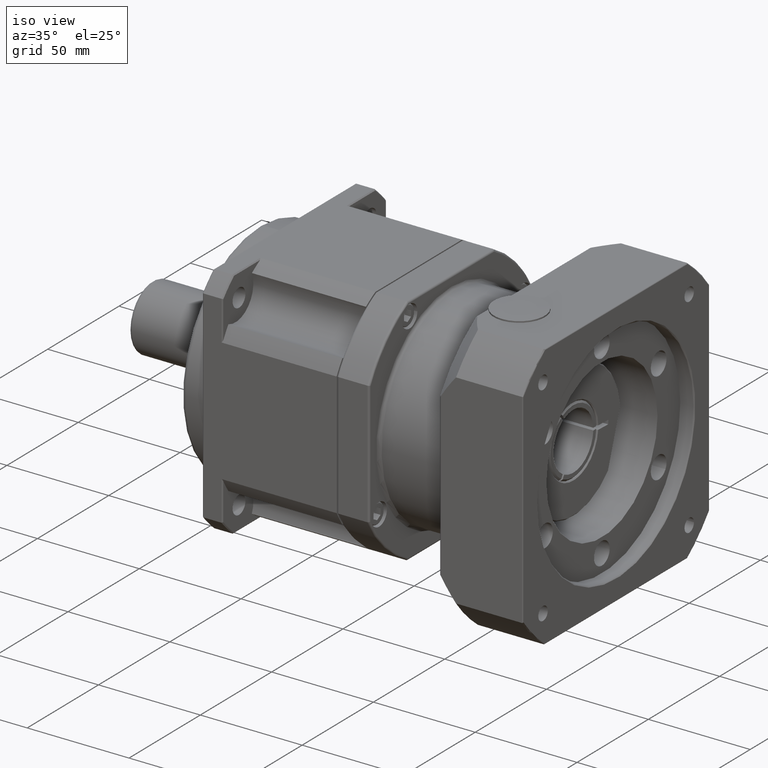
[diagram: clean part render]
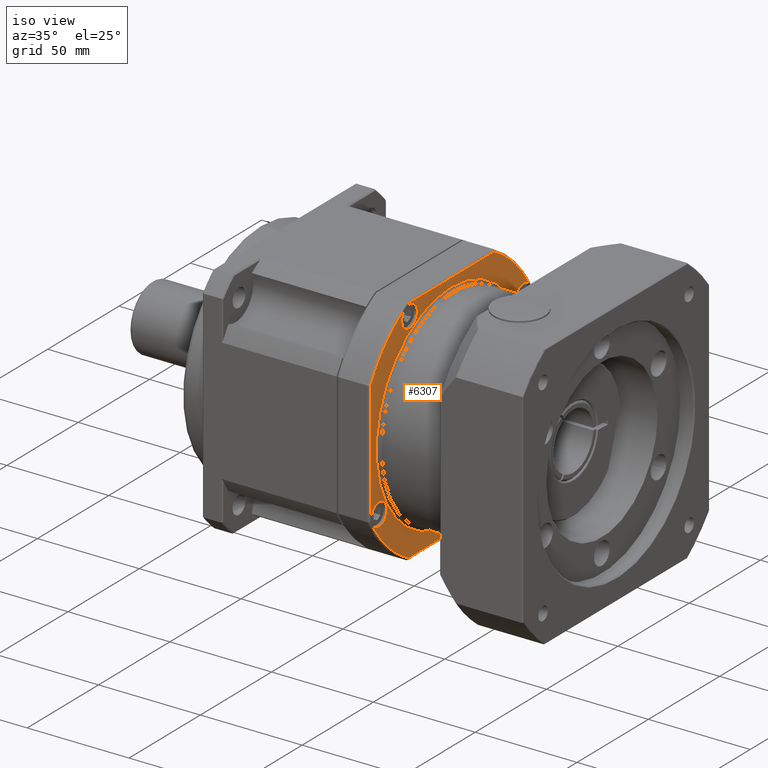
[diagram: same view with one face highlighted and labeled with its STEP entity id]
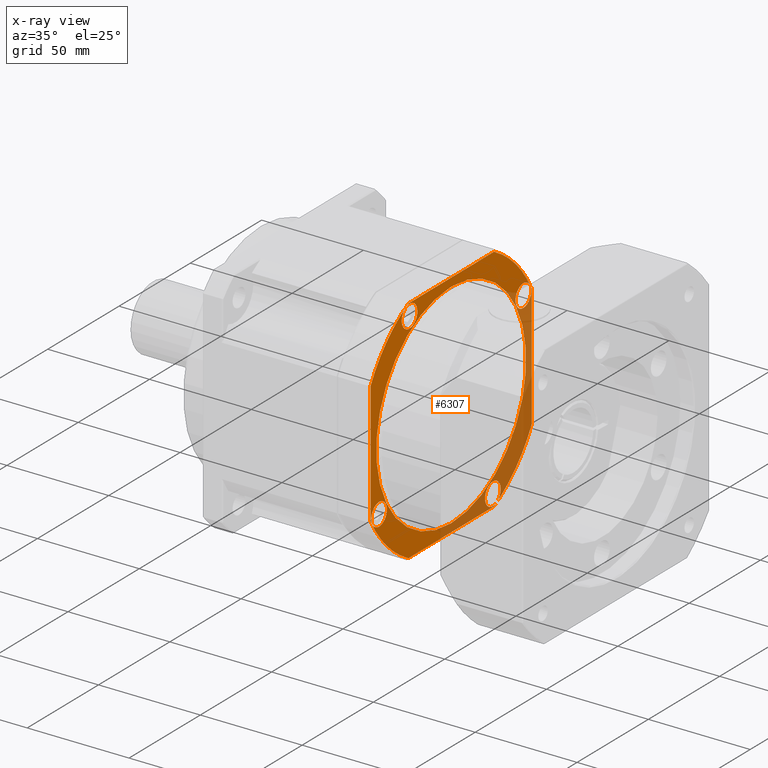
[diagram: x-ray of the same camera — body ghosted, the highlighted face saturated]
A machine part, iso view. The second image highlights one B-rep face of the part: STEP entity #6307.
The next image is the same camera in x-ray: the body ghosted, the highlighted face saturated — about 33% of this face is hidden behind the body in this view.
In plain terms, the highlighted planar face has unit normal (1, 0, 0).
Its self-contained STEP definition (entity closure, byte-faithful):
#276=LINE('',#10410,#583);
#277=LINE('',#10414,#584);
#278=LINE('',#10418,#585);
#279=LINE('',#10422,#586);
#583=VECTOR('',#8159,60.1248700622296);
#584=VECTOR('',#8162,60.1248700622297);
#585=VECTOR('',#8165,60.1248700622296);
#586=VECTOR('',#8168,60.1248700622295);
#987=PLANE('',#6907);
#1199=FACE_BOUND('',#2047,.T.);
#1200=FACE_BOUND('',#2048,.T.);
#1201=FACE_BOUND('',#2049,.T.);
#1202=FACE_BOUND('',#2050,.T.);
#1203=FACE_BOUND('',#2051,.T.);
#1505=FACE_OUTER_BOUND('',#2046,.T.);
#2046=EDGE_LOOP('',(#4741,#4742,#4743,#4744,#4745,#4746,#4747,#4748));
#2047=EDGE_LOOP('',(#4749));
#2048=EDGE_LOOP('',(#4750));
#2049=EDGE_LOOP('',(#4751));
#2050=EDGE_LOOP('',(#4752));
#2051=EDGE_LOOP('',(#4753));
#2532=CIRCLE('',#6906,52.5);
#2533=CIRCLE('',#6908,64.);
#2534=CIRCLE('',#6909,64.);
#2535=CIRCLE('',#6910,64.);
#2536=CIRCLE('',#6911,64.);
#2537=CIRCLE('',#6912,5.5);
#2538=CIRCLE('',#6913,5.5);
#2539=CIRCLE('',#6914,5.5);
#2540=CIRCLE('',#6915,5.5);
#2991=VERTEX_POINT('',#10405);
#2992=VERTEX_POINT('',#10408);
#2993=VERTEX_POINT('',#10409);
#2994=VERTEX_POINT('',#10411);
#2995=VERTEX_POINT('',#10413);
#2996=VERTEX_POINT('',#10415);
#2997=VERTEX_POINT('',#10417);
#2998=VERTEX_POINT('',#10419);
#2999=VERTEX_POINT('',#10421);
#3000=VERTEX_POINT('',#10424);
#3001=VERTEX_POINT('',#10426);
#3002=VERTEX_POINT('',#10428);
#3003=VERTEX_POINT('',#10430);
#3640=EDGE_CURVE('',#2991,#2991,#2532,.T.);
#3641=EDGE_CURVE('',#2992,#2993,#276,.T.);
#3642=EDGE_CURVE('',#2994,#2992,#2533,.T.);
#3643=EDGE_CURVE('',#2995,#2994,#277,.T.);
#3644=EDGE_CURVE('',#2996,#2995,#2534,.T.);
#3645=EDGE_CURVE('',#2997,#2996,#278,.T.);
#3646=EDGE_CURVE('',#2998,#2997,#2535,.T.);
#3647=EDGE_CURVE('',#2999,#2998,#279,.T.);
#3648=EDGE_CURVE('',#2993,#2999,#2536,.T.);
#3649=EDGE_CURVE('',#3000,#3000,#2537,.T.);
#3650=EDGE_CURVE('',#3001,#3001,#2538,.T.);
#3651=EDGE_CURVE('',#3002,#3002,#2539,.T.);
#3652=EDGE_CURVE('',#3003,#3003,#2540,.T.);
#4741=ORIENTED_EDGE('',*,*,#3641,.F.);
#4742=ORIENTED_EDGE('',*,*,#3642,.F.);
#4743=ORIENTED_EDGE('',*,*,#3643,.F.);
#4744=ORIENTED_EDGE('',*,*,#3644,.F.);
#4745=ORIENTED_EDGE('',*,*,#3645,.F.);
#4746=ORIENTED_EDGE('',*,*,#3646,.F.);
#4747=ORIENTED_EDGE('',*,*,#3647,.F.);
#4748=ORIENTED_EDGE('',*,*,#3648,.F.);
#4749=ORIENTED_EDGE('',*,*,#3649,.T.);
#4750=ORIENTED_EDGE('',*,*,#3650,.T.);
#4751=ORIENTED_EDGE('',*,*,#3651,.T.);
#4752=ORIENTED_EDGE('',*,*,#3652,.T.);
#4753=ORIENTED_EDGE('',*,*,#3640,.F.);
#6307=ADVANCED_FACE('',(#1505,#1199,#1200,#1201,#1202,#1203),#987,.T.);
#6906=AXIS2_PLACEMENT_3D('',#10406,#8155,#8156);
#6907=AXIS2_PLACEMENT_3D('',#10407,#8157,#8158);
#6908=AXIS2_PLACEMENT_3D('',#10412,#8160,#8161);
#6909=AXIS2_PLACEMENT_3D('',#10416,#8163,#8164);
#6910=AXIS2_PLACEMENT_3D('',#10420,#8166,#8167);
#6911=AXIS2_PLACEMENT_3D('',#10423,#8169,#8170);
#6912=AXIS2_PLACEMENT_3D('',#10425,#8171,#8172);
#6913=AXIS2_PLACEMENT_3D('',#10427,#8173,#8174);
#6914=AXIS2_PLACEMENT_3D('',#10429,#8175,#8176);
#6915=AXIS2_PLACEMENT_3D('',#10431,#8177,#8178);
#8155=DIRECTION('center_axis',(1.,4.85755800782923E-16,1.72164054506969E-16));
#8156=DIRECTION('ref_axis',(-1.72164054506969E-16,-1.32271987416886E-15,
1.));
#8157=DIRECTION('center_axis',(1.,4.85755800782923E-16,1.72164054506969E-16));
#8158=DIRECTION('ref_axis',(1.77635683940025E-16,1.4210854715202E-15,-1.));
#8159=DIRECTION('',(-1.72164054506969E-16,-1.47718568629062E-15,1.));
#8160=DIRECTION('center_axis',(-1.,-4.85755800782923E-16,-1.72164054506969E-16));
#8161=DIRECTION('ref_axis',(4.65219591152755E-16,-0.707106781186547,-0.707106781186548));
#8162=DIRECTION('',(4.85755800782923E-16,-1.,-1.5544185923515E-15));
#8163=DIRECTION('center_axis',(-1.,-4.85755800782923E-16,-1.72164054506969E-16));
#8164=DIRECTION('ref_axis',(-2.21742850315859E-16,0.707106781186549,-0.707106781186546));
#8165=DIRECTION('',(1.72164054506969E-16,1.47718568629062E-15,-1.));
#8166=DIRECTION('center_axis',(-1.,-4.85755800782923E-16,-1.72164054506969E-16));
#8167=DIRECTION('ref_axis',(-4.65219591152755E-16,0.707106781186546,0.707106781186549));
#8168=DIRECTION('',(-4.85755800782923E-16,1.,1.39995278022974E-15));
#8169=DIRECTION('center_axis',(-1.,-4.85755800782923E-16,-1.72164054506969E-16));
#8170=DIRECTION('ref_axis',(2.21742850315859E-16,-0.707106781186548,0.707106781186547));
#8171=DIRECTION('center_axis',(-1.,-4.85755800782923E-16,-1.72164054506969E-16));
#8172=DIRECTION('ref_axis',(4.85755800782923E-16,-1.,-1.13902285429675E-15));
#8173=DIRECTION('center_axis',(-1.,-4.85755800782923E-16,-1.72164054506969E-16));
#8174=DIRECTION('ref_axis',(-1.72164054506969E-16,-1.20025519425412E-15,
1.));
#8175=DIRECTION('center_axis',(-1.,-4.85755800782923E-16,-1.72164054506969E-16));
#8176=DIRECTION('ref_axis',(-4.85755800782923E-16,1.,1.26148753421149E-15));
#8177=DIRECTION('center_axis',(-1.,-4.85755800782923E-16,-1.72164054506969E-16));
#8178=DIRECTION('ref_axis',(1.72164054506969E-16,1.32271987416885E-15,-1.));
#10405=CARTESIAN_POINT('',(-0.55139560688934,-123.244525766391,-157.4535040948));
#10406=CARTESIAN_POINT('Origin',(-0.551395606889349,-123.244525766391,-104.9535040948));
#10407=CARTESIAN_POINT('Origin',(-0.551395606889349,-123.244525766391,-104.9535040948));
#10408=CARTESIAN_POINT('',(-0.551395606889316,-179.744525766391,-135.015939125915));
#10409=CARTESIAN_POINT('',(-0.551395606889327,-179.744525766391,-74.8910690636854));
#10410=CARTESIAN_POINT('',(-0.551395606889316,-179.744525766391,-133.7035040948));
#10411=CARTESIAN_POINT('',(-0.551395606889324,-153.306960797506,-161.4535040948));
#10412=CARTESIAN_POINT('Origin',(-0.551395606889349,-123.244525766391,-104.9535040948));
#10413=CARTESIAN_POINT('',(-0.551395606889354,-93.1820907352761,-161.4535040948));
#10414=CARTESIAN_POINT('',(-0.551395606889353,-94.4945257663909,-161.4535040948));
#10415=CARTESIAN_POINT('',(-0.551395606889371,-66.744525766391,-135.015939125915));
#10416=CARTESIAN_POINT('Origin',(-0.551395606889349,-123.244525766391,-104.9535040948));
#10417=CARTESIAN_POINT('',(-0.551395606889381,-66.744525766391,-74.8910690636852));
#10418=CARTESIAN_POINT('',(-0.551395606889381,-66.744525766391,-76.2035040948));
#10419=CARTESIAN_POINT('',(-0.551395606889373,-93.1820907352763,-48.4535040948));
#10420=CARTESIAN_POINT('Origin',(-0.551395606889349,-123.244525766391,-104.9535040948));
#10421=CARTESIAN_POINT('',(-0.551395606889344,-153.306960797506,-48.4535040948001));
#10422=CARTESIAN_POINT('',(-0.551395606889345,-151.994525766391,-48.4535040948001));
#10423=CARTESIAN_POINT('Origin',(-0.551395606889349,-123.244525766391,-104.9535040948));
#10424=CARTESIAN_POINT('',(-0.551395606889352,-99.5320257663909,-155.551038310906));
#10425=CARTESIAN_POINT('Origin',(-0.551395606889354,-94.0320257663909,-155.551038310906));
#10426=CARTESIAN_POINT('',(-0.55139560688932,-173.842059982497,-128.6660040948));
#10427=CARTESIAN_POINT('Origin',(-0.551395606889319,-173.842059982497,-134.1660040948));
#10428=CARTESIAN_POINT('',(-0.551395606889346,-146.957025766391,-54.3559698786943));
#10429=CARTESIAN_POINT('Origin',(-0.551395606889343,-152.457025766391,-54.3559698786943));
#10430=CARTESIAN_POINT('',(-0.551395606889378,-72.6469915502852,-81.2410040948));
#10431=CARTESIAN_POINT('Origin',(-0.551395606889378,-72.6469915502852,-75.7410040948));